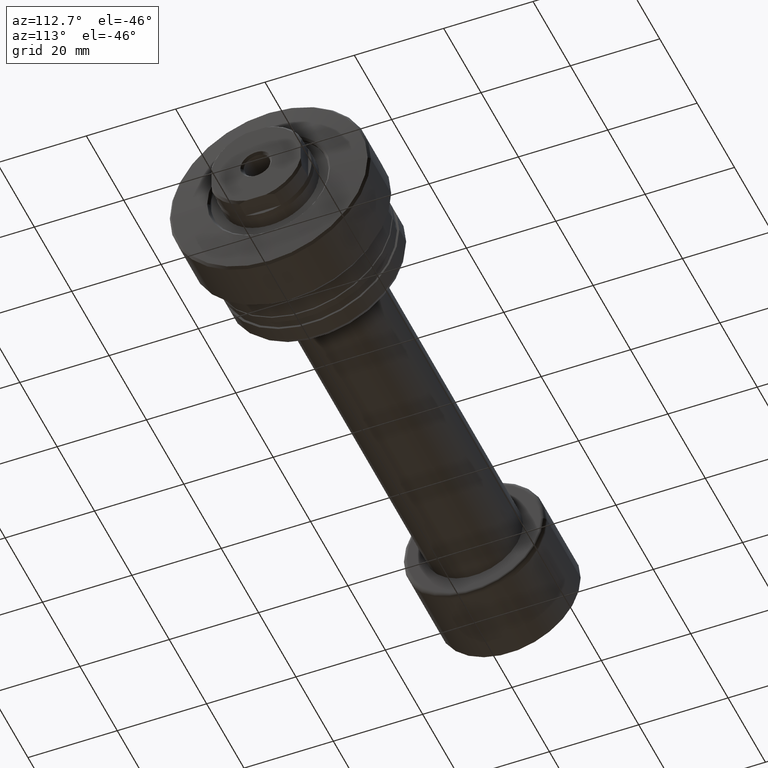
[diagram: clean part render]
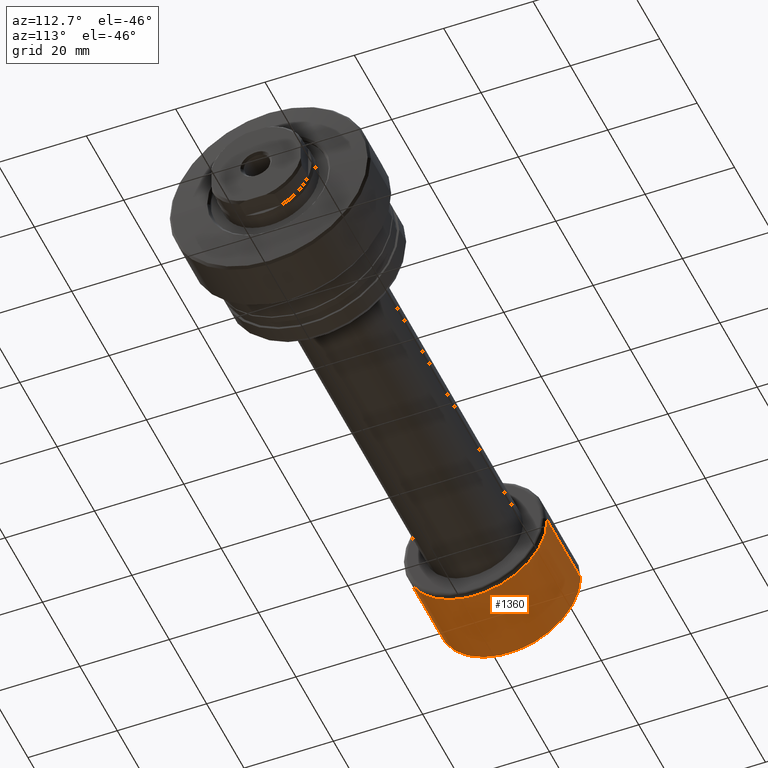
[diagram: same view with one face highlighted and labeled with its STEP entity id]
A machine part, auxiliary view. The second image highlights one B-rep face of the part: STEP entity #1360.
In plain terms, the highlighted cylindrical surface (partial cylindrical patch) has radius 16 mm, axis along (-1, -0, -0).
Its self-contained STEP definition (entity closure, byte-faithful):
#66 = CIRCLE ( 'NONE', #1458, 16.00000000000000000 ) ;
#97 = FACE_OUTER_BOUND ( 'NONE', #1883, .T. ) ;
#196 = VERTEX_POINT ( 'NONE', #878 ) ;
#225 = DIRECTION ( 'NONE',  ( 1.355252715606880543E-17, -1.000000000000000000, 0.000000000000000000 ) ) ;
#250 = EDGE_CURVE ( 'NONE', #1142, #1182, #2039, .T. ) ;
#284 = CARTESIAN_POINT ( 'NONE',  ( 19.39999999999999503, -16.00000000000000000, 0.000000000000000000 ) ) ;
#495 = DIRECTION ( 'NONE',  ( -1.000000000000000000, -1.069542322069065801E-17, -0.000000000000000000 ) ) ;
#501 = EDGE_CURVE ( 'NONE', #196, #2162, #66, .T. ) ;
#522 = LINE ( 'NONE', #2028, #947 ) ;
#609 = ORIENTED_EDGE ( 'NONE', *, *, #250, .T. ) ;
#653 = ORIENTED_EDGE ( 'NONE', *, *, #1281, .F. ) ;
#684 = CYLINDRICAL_SURFACE ( 'NONE', #1616, 16.00000000000000000 ) ;
#755 = DIRECTION ( 'NONE',  ( -1.000000000000000000, -1.069542322069065801E-17, -0.000000000000000000 ) ) ;
#806 = CARTESIAN_POINT ( 'NONE',  ( 19.39999999999999503, 2.074912104813986935E-16, 0.000000000000000000 ) ) ;
#878 = CARTESIAN_POINT ( 'NONE',  ( 1.500000000000001776, 16.00000000000000000, 0.000000000000000000 ) ) ;
#947 = VECTOR ( 'NONE', #1876, 1000.000000000000000 ) ;
#1082 = DIRECTION ( 'NONE',  ( -1.000000000000000000, -1.069542322069065801E-17, -0.000000000000000000 ) ) ;
#1134 = AXIS2_PLACEMENT_3D ( 'NONE', #806, #2296, #1560 ) ;
#1142 = VERTEX_POINT ( 'NONE', #1231 ) ;
#1182 = VERTEX_POINT ( 'NONE', #284 ) ;
#1231 = CARTESIAN_POINT ( 'NONE',  ( 19.39999999999999503, 16.00000000000000000, 1.959434878635765131E-15 ) ) ;
#1281 = EDGE_CURVE ( 'NONE', #1142, #196, #2184, .T. ) ;
#1360 = ADVANCED_FACE ( 'NONE', ( #97 ), #684, .T. ) ;
#1414 = DIRECTION ( 'NONE',  ( 1.069542322069065801E-17, -1.000000000000000000, 0.000000000000000000 ) ) ;
#1421 = VECTOR ( 'NONE', #1082, 1000.000000000000000 ) ;
#1432 = CARTESIAN_POINT ( 'NONE',  ( -1.711267715310505281E-16, 16.00000000000000000, 1.959434878635765131E-15 ) ) ;
#1443 = CARTESIAN_POINT ( 'NONE',  ( 0.000000000000000000, 0.000000000000000000, 0.000000000000000000 ) ) ;
#1458 = AXIS2_PLACEMENT_3D ( 'NONE', #2303, #755, #225 ) ;
#1539 = EDGE_CURVE ( 'NONE', #1182, #2162, #522, .T. ) ;
#1560 = DIRECTION ( 'NONE',  ( 0.000000000000000000, -1.000000000000000000, 0.000000000000000000 ) ) ;
#1616 = AXIS2_PLACEMENT_3D ( 'NONE', #1443, #495, #1414 ) ;
#1709 = CARTESIAN_POINT ( 'NONE',  ( 1.500000000000002220, -16.00000000000000000, 1.959434878635765526E-15 ) ) ;
#1876 = DIRECTION ( 'NONE',  ( -1.000000000000000000, -1.069542322069065801E-17, -0.000000000000000000 ) ) ;
#1878 = ORIENTED_EDGE ( 'NONE', *, *, #501, .F. ) ;
#1883 = EDGE_LOOP ( 'NONE', ( #653, #609, #1964, #1878 ) ) ;
#1964 = ORIENTED_EDGE ( 'NONE', *, *, #1539, .T. ) ;
#2028 = CARTESIAN_POINT ( 'NONE',  ( 1.711267715310505281E-16, -16.00000000000000000, 0.000000000000000000 ) ) ;
#2039 = CIRCLE ( 'NONE', #1134, 16.00000000000000000 ) ;
#2162 = VERTEX_POINT ( 'NONE', #1709 ) ;
#2184 = LINE ( 'NONE', #1432, #1421 ) ;
#2296 = DIRECTION ( 'NONE',  ( -1.000000000000000000, -1.069542322069065801E-17, -0.000000000000000000 ) ) ;
#2303 = CARTESIAN_POINT ( 'NONE',  ( 1.500000000000001998, 1.604313483103600935E-17, 0.000000000000000000 ) ) ;